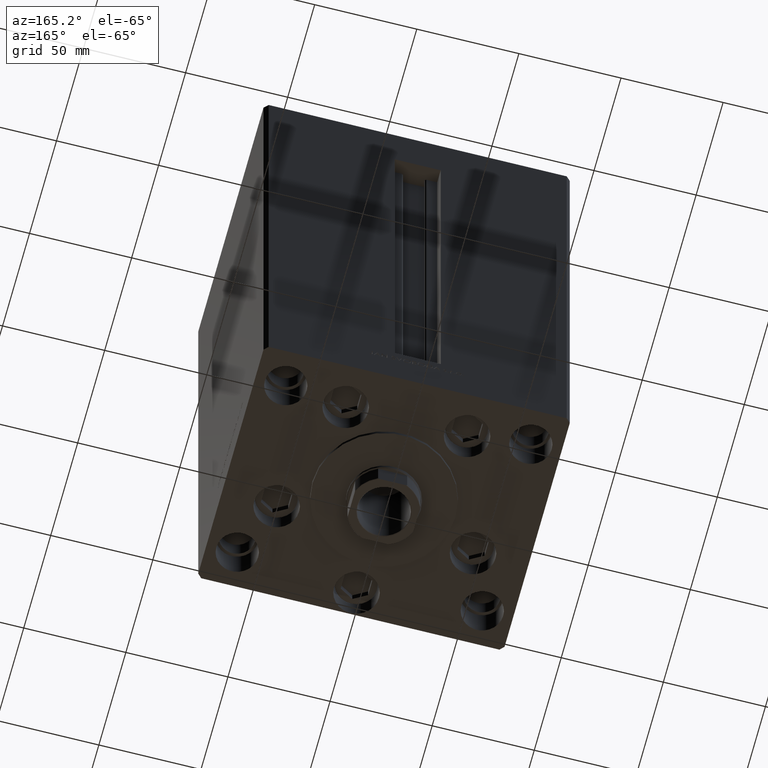
[diagram: clean part render]
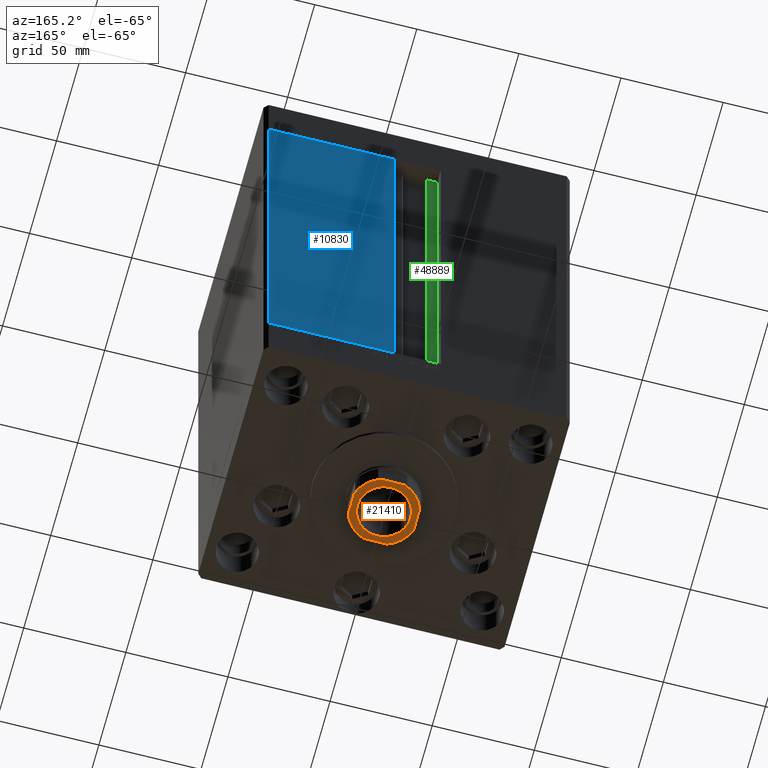
[diagram: same view with three faces highlighted in distinct colors, each labeled with its STEP entity id]
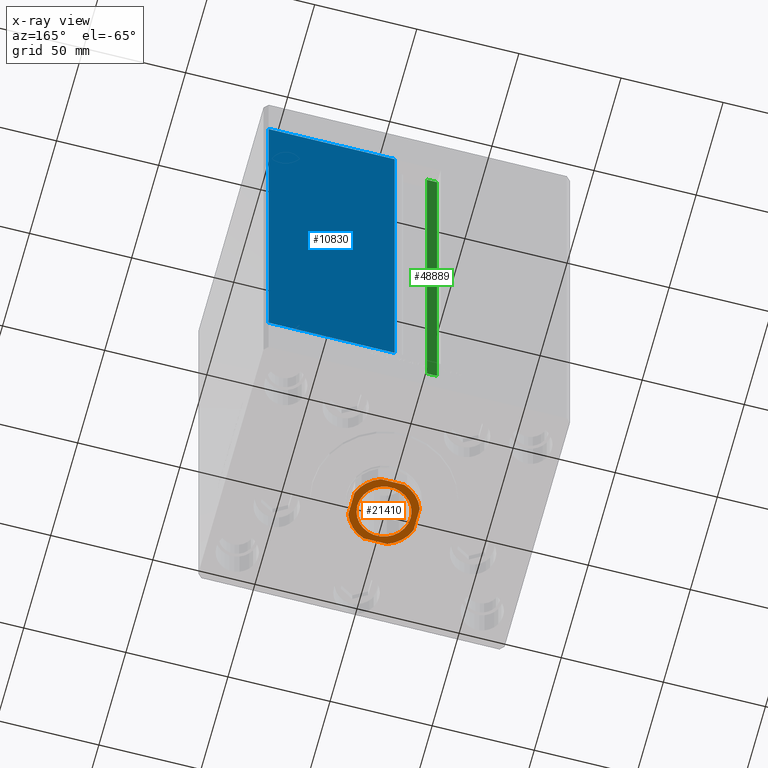
[diagram: x-ray of the same camera — body ghosted, the three highlighted faces saturated]
A machine part, auxiliary view with three faces highlighted in distinct colors.
The next image is the same camera in x-ray (body ghosted, the three faces saturated) — at least one of them is partly hidden behind the body in this view.
Their STEP definitions:

[orange] entity #21410 — the highlighted planar face has unit normal (0, 0, -1).
#299 = VERTEX_POINT ( 'NONE', #15239 ) ;
#1203 = VERTEX_POINT ( 'NONE', #33084 ) ;
#1238 = CARTESIAN_POINT ( 'NONE',  ( 0.000000000000000000, 0.000000000000000000, 252.5000000000000000 ) ) ;
#1368 = DIRECTION ( 'NONE',  ( 1.000000000000000000, 0.000000000000000000, 0.000000000000000000 ) ) ;
#2013 = VERTEX_POINT ( 'NONE', #37047 ) ;
#2568 = EDGE_LOOP ( 'NONE', ( #21259, #17858 ) ) ;
#2695 = CIRCLE ( 'NONE', #7433, 17.00000000000000000 ) ;
#4758 = AXIS2_PLACEMENT_3D ( 'NONE', #15746, #11299, #26400 ) ;
#4805 = AXIS2_PLACEMENT_3D ( 'NONE', #29759, #33938, #18598 ) ;
#5037 = VERTEX_POINT ( 'NONE', #28855 ) ;
#5550 = AXIS2_PLACEMENT_3D ( 'NONE', #1238, #30487, #16351 ) ;
#6565 = ORIENTED_EDGE ( 'NONE', *, *, #13790, .T. ) ;
#7051 = VERTEX_POINT ( 'NONE', #35987 ) ;
#7433 = AXIS2_PLACEMENT_3D ( 'NONE', #33577, #48671, #44712 ) ;
#8310 = VERTEX_POINT ( 'NONE', #37921 ) ;
#9776 = ORIENTED_EDGE ( 'NONE', *, *, #32639, .T. ) ;
#9809 = ORIENTED_EDGE ( 'NONE', *, *, #47168, .T. ) ;
#10849 = CARTESIAN_POINT ( 'NONE',  ( 0.000000000000000000, 0.000000000000000000, 252.5000000000000000 ) ) ;
#11299 = DIRECTION ( 'NONE',  ( -0.000000000000000000, 0.000000000000000000, 1.000000000000000000 ) ) ;
#11904 = AXIS2_PLACEMENT_3D ( 'NONE', #12532, #20692, #1368 ) ;
#12013 = AXIS2_PLACEMENT_3D ( 'NONE', #29893, #44963, #40278 ) ;
#12196 = EDGE_CURVE ( 'NONE', #21216, #299, #42201, .T. ) ;
#12375 = ORIENTED_EDGE ( 'NONE', *, *, #12196, .T. ) ;
#12532 = CARTESIAN_POINT ( 'NONE',  ( 0.000000000000000000, 0.000000000000000000, 252.5000000000000000 ) ) ;
#13790 = EDGE_CURVE ( 'NONE', #2013, #30327, #45055, .T. ) ;
#14221 = DIRECTION ( 'NONE',  ( -1.000000000000000000, -1.084202172485504434E-16, -0.000000000000000000 ) ) ;
#14521 = CARTESIAN_POINT ( 'NONE',  ( -16.00000000000000000, 5.744562646538029504, 252.5000000000000000 ) ) ;
#14648 = CARTESIAN_POINT ( 'NONE',  ( 16.00000000000000000, 16.00000000000000000, 252.5000000000000000 ) ) ;
#15226 = ORIENTED_EDGE ( 'NONE', *, *, #17010, .T. ) ;
#15239 = CARTESIAN_POINT ( 'NONE',  ( 5.744562646538024175, -16.00000000000000355, 252.5000000000000000 ) ) ;
#15733 = VECTOR ( 'NONE', #45179, 1000.000000000000000 ) ;
#15746 = CARTESIAN_POINT ( 'NONE',  ( 0.000000000000000000, 0.000000000000000000, 252.5000000000000000 ) ) ;
#16319 = EDGE_CURVE ( 'NONE', #8310, #5037, #38021, .T. ) ;
#16351 = DIRECTION ( 'NONE',  ( 1.000000000000000000, 0.000000000000000000, 0.000000000000000000 ) ) ;
#16750 = CIRCLE ( 'NONE', #12013, 13.05000000000000426 ) ;
#16972 = FACE_OUTER_BOUND ( 'NONE', #46558, .T. ) ;
#17010 = EDGE_CURVE ( 'NONE', #299, #25335, #28489, .T. ) ;
#17858 = ORIENTED_EDGE ( 'NONE', *, *, #21116, .T. ) ;
#17880 = LINE ( 'NONE', #14648, #45911 ) ;
#17947 = CARTESIAN_POINT ( 'NONE',  ( -16.00000000000000000, 15.99999999999999645, 252.5000000000000000 ) ) ;
#18598 = DIRECTION ( 'NONE',  ( 1.000000000000000000, 0.000000000000000000, 0.000000000000000000 ) ) ;
#18652 = EDGE_CURVE ( 'NONE', #25335, #1203, #17880, .T. ) ;
#19312 = CIRCLE ( 'NONE', #35912, 17.00000000000000000 ) ;
#20692 = DIRECTION ( 'NONE',  ( -0.000000000000000000, 0.000000000000000000, 1.000000000000000000 ) ) ;
#21116 = EDGE_CURVE ( 'NONE', #5037, #8310, #16750, .T. ) ;
#21216 = VERTEX_POINT ( 'NONE', #44473 ) ;
#21259 = ORIENTED_EDGE ( 'NONE', *, *, #16319, .T. ) ;
#21410 = ADVANCED_FACE ( 'NONE', ( #39242, #16972 ), #24646, .T. ) ;
#22503 = VERTEX_POINT ( 'NONE', #45388 ) ;
#23529 = DIRECTION ( 'NONE',  ( 1.084202172485504434E-16, -1.000000000000000000, 0.000000000000000000 ) ) ;
#24646 = PLANE ( 'NONE',  #11904 ) ;
#24884 = LINE ( 'NONE', #17947, #43862 ) ;
#25335 = VERTEX_POINT ( 'NONE', #38722 ) ;
#26400 = DIRECTION ( 'NONE',  ( 1.000000000000000000, 0.000000000000000000, 0.000000000000000000 ) ) ;
#28489 = CIRCLE ( 'NONE', #4758, 17.00000000000000000 ) ;
#28855 = CARTESIAN_POINT ( 'NONE',  ( -13.05000000000000426, 1.598164072887296563E-15, 252.5000000000000000 ) ) ;
#29759 = CARTESIAN_POINT ( 'NONE',  ( 0.000000000000000000, 0.000000000000000000, 252.5000000000000000 ) ) ;
#29893 = CARTESIAN_POINT ( 'NONE',  ( 0.000000000000000000, 0.000000000000000000, 252.5000000000000000 ) ) ;
#30050 = LINE ( 'NONE', #42330, #35168 ) ;
#30321 = EDGE_CURVE ( 'NONE', #22503, #21216, #2695, .T. ) ;
#30327 = VERTEX_POINT ( 'NONE', #14521 ) ;
#30487 = DIRECTION ( 'NONE',  ( -0.000000000000000000, 0.000000000000000000, 1.000000000000000000 ) ) ;
#32639 = EDGE_CURVE ( 'NONE', #7051, #2013, #24884, .T. ) ;
#32972 = DIRECTION ( 'NONE',  ( -1.084202172485504434E-16, 1.000000000000000000, -0.000000000000000000 ) ) ;
#33084 = CARTESIAN_POINT ( 'NONE',  ( 16.00000000000000000, 5.744562646538033945, 252.5000000000000000 ) ) ;
#33577 = CARTESIAN_POINT ( 'NONE',  ( 0.000000000000000000, 0.000000000000000000, 252.5000000000000000 ) ) ;
#33938 = DIRECTION ( 'NONE',  ( 0.000000000000000000, -0.000000000000000000, -1.000000000000000000 ) ) ;
#35168 = VECTOR ( 'NONE', #23529, 1000.000000000000000 ) ;
#35912 = AXIS2_PLACEMENT_3D ( 'NONE', #10849, #44737, #38052 ) ;
#35974 = EDGE_CURVE ( 'NONE', #30327, #22503, #30050, .T. ) ;
#35987 = CARTESIAN_POINT ( 'NONE',  ( 5.744562646538033057, 16.00000000000000000, 252.5000000000000000 ) ) ;
#37047 = CARTESIAN_POINT ( 'NONE',  ( -5.744562646538033945, 16.00000000000000000, 252.5000000000000000 ) ) ;
#37921 = CARTESIAN_POINT ( 'NONE',  ( 13.05000000000000426, 0.000000000000000000, 252.5000000000000000 ) ) ;
#38021 = CIRCLE ( 'NONE', #4805, 13.05000000000000426 ) ;
#38052 = DIRECTION ( 'NONE',  ( 1.000000000000000000, 0.000000000000000000, 0.000000000000000000 ) ) ;
#38722 = CARTESIAN_POINT ( 'NONE',  ( 16.00000000000000355, -5.744562646538033057, 252.5000000000000000 ) ) ;
#39242 = FACE_BOUND ( 'NONE', #2568, .T. ) ;
#40278 = DIRECTION ( 'NONE',  ( 1.000000000000000000, 0.000000000000000000, 0.000000000000000000 ) ) ;
#41956 = CARTESIAN_POINT ( 'NONE',  ( -15.99999999999999645, -16.00000000000000355, 252.5000000000000000 ) ) ;
#42201 = LINE ( 'NONE', #41956, #15733 ) ;
#42330 = CARTESIAN_POINT ( 'NONE',  ( -16.00000000000000000, 15.99999999999999645, 252.5000000000000000 ) ) ;
#42555 = ORIENTED_EDGE ( 'NONE', *, *, #30321, .T. ) ;
#43862 = VECTOR ( 'NONE', #14221, 1000.000000000000000 ) ;
#44473 = CARTESIAN_POINT ( 'NONE',  ( -5.744562646538029504, -16.00000000000000355, 252.5000000000000000 ) ) ;
#44712 = DIRECTION ( 'NONE',  ( 1.000000000000000000, 0.000000000000000000, 0.000000000000000000 ) ) ;
#44737 = DIRECTION ( 'NONE',  ( -0.000000000000000000, 0.000000000000000000, 1.000000000000000000 ) ) ;
#44963 = DIRECTION ( 'NONE',  ( 0.000000000000000000, -0.000000000000000000, -1.000000000000000000 ) ) ;
#45055 = CIRCLE ( 'NONE', #5550, 17.00000000000000000 ) ;
#45179 = DIRECTION ( 'NONE',  ( 1.000000000000000000, 1.084202172485504434E-16, 0.000000000000000000 ) ) ;
#45388 = CARTESIAN_POINT ( 'NONE',  ( -16.00000000000000000, -5.744562646538033945, 252.5000000000000000 ) ) ;
#45911 = VECTOR ( 'NONE', #32972, 1000.000000000000000 ) ;
#46558 = EDGE_LOOP ( 'NONE', ( #48469, #42555, #12375, #15226, #48878, #9809, #9776, #6565 ) ) ;
#47168 = EDGE_CURVE ( 'NONE', #1203, #7051, #19312, .T. ) ;
#48469 = ORIENTED_EDGE ( 'NONE', *, *, #35974, .T. ) ;
#48671 = DIRECTION ( 'NONE',  ( -0.000000000000000000, 0.000000000000000000, 1.000000000000000000 ) ) ;
#48878 = ORIENTED_EDGE ( 'NONE', *, *, #18652, .T. ) ;

[blue] entity #10830 — the highlighted planar face has unit normal (-0, -1, 0).
#2372 = VERTEX_POINT ( 'NONE', #37834 ) ;
#3783 = VECTOR ( 'NONE', #8939, 1000.000000000000000 ) ;
#6910 = DIRECTION ( 'NONE',  ( -0.000000000000000000, -0.000000000000000000, 1.000000000000000000 ) ) ;
#8434 = EDGE_CURVE ( 'NONE', #23142, #36713, #30991, .T. ) ;
#8939 = DIRECTION ( 'NONE',  ( -1.000000000000000000, 1.123707514802790025E-16, 0.000000000000000000 ) ) ;
#10397 = CARTESIAN_POINT ( 'NONE',  ( 11.25000000000000178, 62.49999999999999289, 0.000000000000000000 ) ) ;
#10780 = CARTESIAN_POINT ( 'NONE',  ( 73.00000000000001421, 62.50000000000000000, 217.0000000000000000 ) ) ;
#10830 = ADVANCED_FACE ( 'NONE', ( #19806 ), #48099, .F. ) ;
#11606 = CARTESIAN_POINT ( 'NONE',  ( -11.25000000000000178, 62.49999999999999289, 217.0000000000000000 ) ) ;
#13736 = CARTESIAN_POINT ( 'NONE',  ( 11.25000000000000178, 62.49999999999999289, 0.000000000000000000 ) ) ;
#16127 = CARTESIAN_POINT ( 'NONE',  ( -11.25000000000000178, 62.49999999999999289, 0.000000000000000000 ) ) ;
#18403 = VECTOR ( 'NONE', #6910, 1000.000000000000000 ) ;
#19561 = DIRECTION ( 'NONE',  ( 1.000000000000000000, -1.123707514802790025E-16, 0.000000000000000000 ) ) ;
#19806 = FACE_OUTER_BOUND ( 'NONE', #34489, .T. ) ;
#20243 = EDGE_CURVE ( 'NONE', #2372, #23142, #32338, .T. ) ;
#23142 = VERTEX_POINT ( 'NONE', #27945 ) ;
#27842 = EDGE_CURVE ( 'NONE', #36713, #39649, #36627, .T. ) ;
#27945 = CARTESIAN_POINT ( 'NONE',  ( 73.00000000000001421, 62.50000000000000000, 0.000000000000000000 ) ) ;
#29298 = CARTESIAN_POINT ( 'NONE',  ( -11.25000000000000178, 62.49999999999999289, 217.0000000000000000 ) ) ;
#29795 = DIRECTION ( 'NONE',  ( -1.123707514802790025E-16, -1.000000000000000000, 0.000000000000000000 ) ) ;
#30070 = EDGE_CURVE ( 'NONE', #39649, #2372, #34124, .T. ) ;
#30991 = LINE ( 'NONE', #16127, #3783 ) ;
#32338 = LINE ( 'NONE', #10780, #42773 ) ;
#34124 = LINE ( 'NONE', #11606, #39805 ) ;
#34489 = EDGE_LOOP ( 'NONE', ( #39582, #47382, #38303, #42454 ) ) ;
#36627 = LINE ( 'NONE', #10397, #18403 ) ;
#36713 = VERTEX_POINT ( 'NONE', #13736 ) ;
#37042 = AXIS2_PLACEMENT_3D ( 'NONE', #29298, #29795, #19561 ) ;
#37834 = CARTESIAN_POINT ( 'NONE',  ( 73.00000000000001421, 62.50000000000000000, 217.0000000000000000 ) ) ;
#38303 = ORIENTED_EDGE ( 'NONE', *, *, #30070, .T. ) ;
#39582 = ORIENTED_EDGE ( 'NONE', *, *, #8434, .T. ) ;
#39649 = VERTEX_POINT ( 'NONE', #42416 ) ;
#39805 = VECTOR ( 'NONE', #41055, 1000.000000000000000 ) ;
#41055 = DIRECTION ( 'NONE',  ( 1.000000000000000000, 0.000000000000000000, 0.000000000000000000 ) ) ;
#42416 = CARTESIAN_POINT ( 'NONE',  ( 11.24999999999999467, 62.49999999999999289, 217.0000000000000000 ) ) ;
#42454 = ORIENTED_EDGE ( 'NONE', *, *, #20243, .T. ) ;
#42773 = VECTOR ( 'NONE', #47659, 1000.000000000000000 ) ;
#47382 = ORIENTED_EDGE ( 'NONE', *, *, #27842, .T. ) ;
#47659 = DIRECTION ( 'NONE',  ( -0.000000000000000000, -0.000000000000000000, -1.000000000000000000 ) ) ;
#48099 = PLANE ( 'NONE',  #37042 ) ;

[green] entity #48889 — the highlighted planar face has unit normal (0, -1, 0).
#1459 = ORIENTED_EDGE ( 'NONE', *, *, #38732, .T. ) ;
#1745 = CARTESIAN_POINT ( 'NONE',  ( -11.25000000000000178, 55.99999999999999289, 217.0000000000000000 ) ) ;
#3752 = DIRECTION ( 'NONE',  ( -0.000000000000000000, -0.000000000000000000, 1.000000000000000000 ) ) ;
#6131 = EDGE_CURVE ( 'NONE', #25218, #48040, #46807, .T. ) ;
#6245 = CARTESIAN_POINT ( 'NONE',  ( -6.183333333334001480, 55.99999999999999289, 217.0000000000000000 ) ) ;
#10293 = CARTESIAN_POINT ( 'NONE',  ( -11.25000000000000178, 55.99999999999999289, 0.000000000000000000 ) ) ;
#10364 = CARTESIAN_POINT ( 'NONE',  ( -6.183333333334001480, 55.99999999999999289, 0.000000000000000000 ) ) ;
#10429 = VECTOR ( 'NONE', #3752, 1000.000000000000000 ) ;
#13197 = CARTESIAN_POINT ( 'NONE',  ( -11.25000000000000178, 55.99999999999999289, 0.000000000000000000 ) ) ;
#13306 = VECTOR ( 'NONE', #27289, 1000.000000000000000 ) ;
#14443 = DIRECTION ( 'NONE',  ( 0.000000000000000000, 0.000000000000000000, -1.000000000000000000 ) ) ;
#14821 = VECTOR ( 'NONE', #44520, 1000.000000000000000 ) ;
#15177 = CARTESIAN_POINT ( 'NONE',  ( -6.183333333334001480, 55.99999999999999289, 0.000000000000000000 ) ) ;
#16981 = AXIS2_PLACEMENT_3D ( 'NONE', #15177, #36969, #14443 ) ;
#19110 = CARTESIAN_POINT ( 'NONE',  ( -6.183333333334001480, 55.99999999999999289, 0.000000000000000000 ) ) ;
#19255 = VERTEX_POINT ( 'NONE', #6245 ) ;
#21766 = CARTESIAN_POINT ( 'NONE',  ( 0.000000000000000000, 55.99999999999999289, 217.0000000000000000 ) ) ;
#21941 = EDGE_CURVE ( 'NONE', #48040, #19255, #34438, .T. ) ;
#25218 = VERTEX_POINT ( 'NONE', #10293 ) ;
#25830 = FACE_OUTER_BOUND ( 'NONE', #36708, .T. ) ;
#27289 = DIRECTION ( 'NONE',  ( 1.000000000000000000, -0.000000000000000000, -0.000000000000000000 ) ) ;
#27959 = ORIENTED_EDGE ( 'NONE', *, *, #21941, .F. ) ;
#28569 = VERTEX_POINT ( 'NONE', #1745 ) ;
#29030 = LINE ( 'NONE', #13197, #43929 ) ;
#29618 = ORIENTED_EDGE ( 'NONE', *, *, #43305, .F. ) ;
#33982 = PLANE ( 'NONE',  #16981 ) ;
#34438 = LINE ( 'NONE', #19110, #10429 ) ;
#34660 = ORIENTED_EDGE ( 'NONE', *, *, #6131, .F. ) ;
#36708 = EDGE_LOOP ( 'NONE', ( #27959, #34660, #1459, #29618 ) ) ;
#36969 = DIRECTION ( 'NONE',  ( 0.000000000000000000, -1.000000000000000000, -0.000000000000000000 ) ) ;
#38663 = CARTESIAN_POINT ( 'NONE',  ( -6.183333333334001480, 55.99999999999999289, 0.000000000000000000 ) ) ;
#38732 = EDGE_CURVE ( 'NONE', #25218, #28569, #29030, .T. ) ;
#43305 = EDGE_CURVE ( 'NONE', #19255, #28569, #48480, .T. ) ;
#43929 = VECTOR ( 'NONE', #44112, 1000.000000000000000 ) ;
#44112 = DIRECTION ( 'NONE',  ( -0.000000000000000000, -0.000000000000000000, 1.000000000000000000 ) ) ;
#44520 = DIRECTION ( 'NONE',  ( -1.000000000000000000, 0.000000000000000000, 0.000000000000000000 ) ) ;
#46807 = LINE ( 'NONE', #38663, #13306 ) ;
#48040 = VERTEX_POINT ( 'NONE', #10364 ) ;
#48480 = LINE ( 'NONE', #21766, #14821 ) ;
#48889 = ADVANCED_FACE ( 'NONE', ( #25830 ), #33982, .F. ) ;